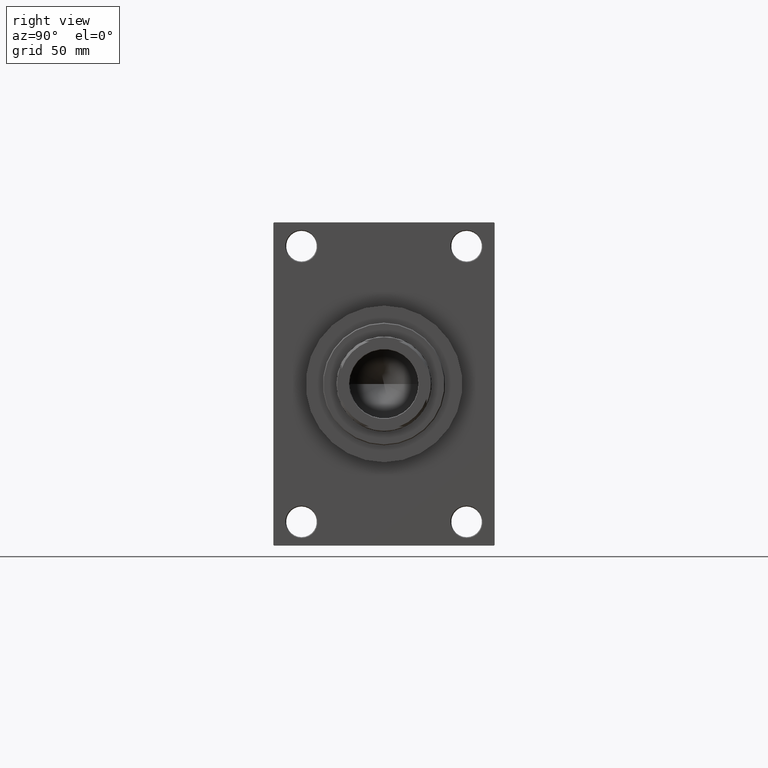
[diagram: clean part render]
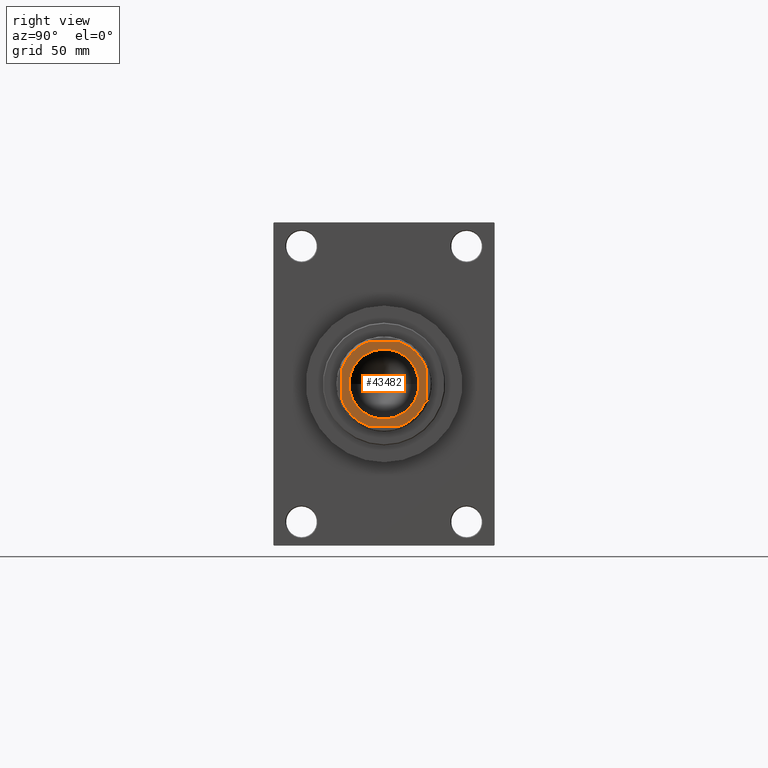
[diagram: same view with one face highlighted and labeled with its STEP entity id]
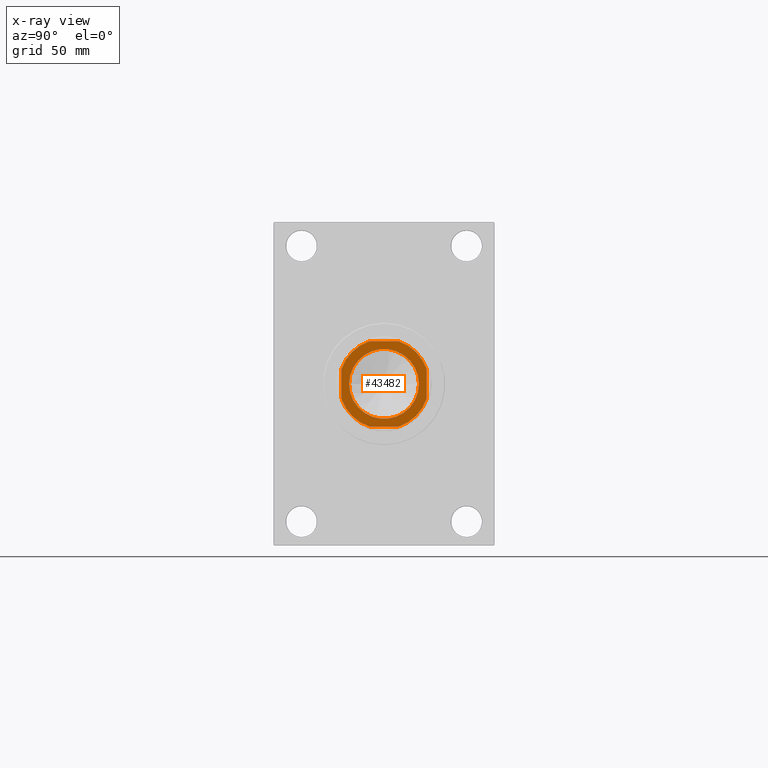
[diagram: x-ray of the same camera — body ghosted, the highlighted face saturated]
A machine part, right view. The second image highlights one B-rep face of the part: STEP entity #43482.
The next image is the same camera in x-ray: the body ghosted, the highlighted face saturated — about 0% of this face is hidden behind the body in this view.
In plain terms, the highlighted planar face has unit normal (1, 0, 0).
Its self-contained STEP definition (entity closure, byte-faithful):
#110 = CARTESIAN_POINT ( 'NONE',  ( -8.789197915623267576, -25.00000000000000000, 298.0000000000000568 ) ) ;
#726 = CARTESIAN_POINT ( 'NONE',  ( 8.789197915623374158, 25.00000000000000000, 298.0000000000000568 ) ) ;
#1507 = DIRECTION ( 'NONE',  ( 0.000000000000000000, -0.000000000000000000, -1.000000000000000000 ) ) ;
#1797 = VERTEX_POINT ( 'NONE', #8551 ) ;
#2225 = DIRECTION ( 'NONE',  ( 1.000000000000000000, 0.000000000000000000, 0.000000000000000000 ) ) ;
#2534 = VERTEX_POINT ( 'NONE', #2804 ) ;
#2804 = CARTESIAN_POINT ( 'NONE',  ( -20.55000000000001137, 2.516649172247812343E-15, 298.0000000000000568 ) ) ;
#2810 = EDGE_CURVE ( 'NONE', #3985, #24379, #23287, .T. ) ;
#2932 = ORIENTED_EDGE ( 'NONE', *, *, #7193, .T. ) ;
#2964 = FACE_BOUND ( 'NONE', #21729, .T. ) ;
#3301 = VECTOR ( 'NONE', #41203, 1000.000000000000000 ) ;
#3448 = DIRECTION ( 'NONE',  ( 1.000000000000000000, 0.000000000000000000, 0.000000000000000000 ) ) ;
#3607 = VECTOR ( 'NONE', #6169, 1000.000000000000000 ) ;
#3985 = VERTEX_POINT ( 'NONE', #110 ) ;
#4019 = CARTESIAN_POINT ( 'NONE',  ( -24.99999999999999645, 8.789197915623416790, 298.0000000000000568 ) ) ;
#4109 = DIRECTION ( 'NONE',  ( -0.000000000000000000, 0.000000000000000000, 1.000000000000000000 ) ) ;
#4447 = ORIENTED_EDGE ( 'NONE', *, *, #45637, .T. ) ;
#4713 = ORIENTED_EDGE ( 'NONE', *, *, #41660, .T. ) ;
#5529 = CARTESIAN_POINT ( 'NONE',  ( -8.789197915623409685, 25.00000000000000000, 298.0000000000000568 ) ) ;
#5556 = DIRECTION ( 'NONE',  ( 1.000000000000000000, 0.000000000000000000, 0.000000000000000000 ) ) ;
#6169 = DIRECTION ( 'NONE',  ( -1.387778780781445676E-16, 1.000000000000000000, -0.000000000000000000 ) ) ;
#6405 = VERTEX_POINT ( 'NONE', #42609 ) ;
#7193 = EDGE_CURVE ( 'NONE', #44391, #6405, #30117, .T. ) ;
#8176 = DIRECTION ( 'NONE',  ( 1.000000000000000000, 0.000000000000000000, 0.000000000000000000 ) ) ;
#8223 = CIRCLE ( 'NONE', #35194, 20.55000000000001137 ) ;
#8471 = DIRECTION ( 'NONE',  ( -1.000000000000000000, -0.000000000000000000, -0.000000000000000000 ) ) ;
#8551 = CARTESIAN_POINT ( 'NONE',  ( 25.00000000000000355, -8.789197915623359947, 298.0000000000000568 ) ) ;
#8747 = CARTESIAN_POINT ( 'NONE',  ( 0.000000000000000000, 0.000000000000000000, 298.0000000000000568 ) ) ;
#10033 = LINE ( 'NONE', #42855, #3607 ) ;
#12646 = DIRECTION ( 'NONE',  ( 1.000000000000000000, 0.000000000000000000, 0.000000000000000000 ) ) ;
#12860 = VECTOR ( 'NONE', #8471, 1000.000000000000000 ) ;
#13608 = AXIS2_PLACEMENT_3D ( 'NONE', #45542, #38754, #26734 ) ;
#13822 = CIRCLE ( 'NONE', #38469, 26.49999999999996803 ) ;
#14139 = DIRECTION ( 'NONE',  ( 1.000000000000000000, 0.000000000000000000, 0.000000000000000000 ) ) ;
#14310 = FACE_OUTER_BOUND ( 'NONE', #21854, .T. ) ;
#16134 = DIRECTION ( 'NONE',  ( -0.000000000000000000, 0.000000000000000000, 1.000000000000000000 ) ) ;
#17455 = DIRECTION ( 'NONE',  ( -0.000000000000000000, 0.000000000000000000, 1.000000000000000000 ) ) ;
#17942 = PLANE ( 'NONE',  #21318 ) ;
#19092 = CIRCLE ( 'NONE', #41405, 26.49999999999998224 ) ;
#20216 = CARTESIAN_POINT ( 'NONE',  ( 0.000000000000000000, 0.000000000000000000, 298.0000000000000568 ) ) ;
#20890 = ORIENTED_EDGE ( 'NONE', *, *, #29694, .T. ) ;
#20953 = ORIENTED_EDGE ( 'NONE', *, *, #36608, .T. ) ;
#21032 = ORIENTED_EDGE ( 'NONE', *, *, #2810, .T. ) ;
#21318 = AXIS2_PLACEMENT_3D ( 'NONE', #24460, #17455, #3448 ) ;
#21346 = VERTEX_POINT ( 'NONE', #5529 ) ;
#21389 = DIRECTION ( 'NONE',  ( 0.000000000000000000, -0.000000000000000000, -1.000000000000000000 ) ) ;
#21729 = EDGE_LOOP ( 'NONE', ( #28838, #20953 ) ) ;
#21854 = EDGE_LOOP ( 'NONE', ( #45626, #20890, #4713, #4447, #2932, #31482, #21032, #33949 ) ) ;
#22217 = CARTESIAN_POINT ( 'NONE',  ( 20.55000000000001137, 0.000000000000000000, 298.0000000000000568 ) ) ;
#22461 = EDGE_CURVE ( 'NONE', #1797, #32401, #10033, .T. ) ;
#22961 = VECTOR ( 'NONE', #12646, 1000.000000000000000 ) ;
#23250 = EDGE_CURVE ( 'NONE', #24379, #1797, #34422, .T. ) ;
#23287 = LINE ( 'NONE', #27377, #22961 ) ;
#24379 = VERTEX_POINT ( 'NONE', #30857 ) ;
#24460 = CARTESIAN_POINT ( 'NONE',  ( 0.000000000000000000, 0.000000000000000000, 298.0000000000000568 ) ) ;
#24766 = CARTESIAN_POINT ( 'NONE',  ( 0.000000000000000000, 0.000000000000000000, 298.0000000000000568 ) ) ;
#26292 = EDGE_CURVE ( 'NONE', #6405, #3985, #46876, .T. ) ;
#26734 = DIRECTION ( 'NONE',  ( 1.000000000000000000, 0.000000000000000000, 0.000000000000000000 ) ) ;
#27377 = CARTESIAN_POINT ( 'NONE',  ( -24.99999999999999289, -25.00000000000000000, 298.0000000000000568 ) ) ;
#28838 = ORIENTED_EDGE ( 'NONE', *, *, #44900, .T. ) ;
#29422 = CARTESIAN_POINT ( 'NONE',  ( -25.00000000000000000, 25.00000000000000000, 298.0000000000000568 ) ) ;
#29694 = EDGE_CURVE ( 'NONE', #32401, #39771, #13822, .T. ) ;
#29954 = DIRECTION ( 'NONE',  ( 1.000000000000000000, 0.000000000000000000, 0.000000000000000000 ) ) ;
#30117 = LINE ( 'NONE', #29422, #3301 ) ;
#30857 = CARTESIAN_POINT ( 'NONE',  ( 8.789197915623370605, -25.00000000000000000, 298.0000000000000568 ) ) ;
#31482 = ORIENTED_EDGE ( 'NONE', *, *, #26292, .T. ) ;
#32401 = VERTEX_POINT ( 'NONE', #46219 ) ;
#32812 = AXIS2_PLACEMENT_3D ( 'NONE', #24766, #21389, #14139 ) ;
#33949 = ORIENTED_EDGE ( 'NONE', *, *, #23250, .T. ) ;
#34422 = CIRCLE ( 'NONE', #13608, 26.49999999999996803 ) ;
#35194 = AXIS2_PLACEMENT_3D ( 'NONE', #8747, #1507, #2225 ) ;
#36608 = EDGE_CURVE ( 'NONE', #2534, #45572, #43583, .T. ) ;
#37180 = CARTESIAN_POINT ( 'NONE',  ( 0.000000000000000000, 0.000000000000000000, 298.0000000000000568 ) ) ;
#37669 = LINE ( 'NONE', #41536, #12860 ) ;
#38469 = AXIS2_PLACEMENT_3D ( 'NONE', #37180, #4109, #29954 ) ;
#38614 = DIRECTION ( 'NONE',  ( -0.000000000000000000, 0.000000000000000000, 1.000000000000000000 ) ) ;
#38754 = DIRECTION ( 'NONE',  ( -0.000000000000000000, 0.000000000000000000, 1.000000000000000000 ) ) ;
#39771 = VERTEX_POINT ( 'NONE', #726 ) ;
#41203 = DIRECTION ( 'NONE',  ( 1.387778780781445676E-16, -1.000000000000000000, 0.000000000000000000 ) ) ;
#41405 = AXIS2_PLACEMENT_3D ( 'NONE', #20216, #16134, #8176 ) ;
#41536 = CARTESIAN_POINT ( 'NONE',  ( -25.00000000000000000, 25.00000000000000000, 298.0000000000000568 ) ) ;
#41660 = EDGE_CURVE ( 'NONE', #39771, #21346, #37669, .T. ) ;
#42609 = CARTESIAN_POINT ( 'NONE',  ( -24.99999999999999645, -8.789197915623281787, 298.0000000000000568 ) ) ;
#42855 = CARTESIAN_POINT ( 'NONE',  ( 25.00000000000000000, 25.00000000000000000, 298.0000000000000568 ) ) ;
#43482 = ADVANCED_FACE ( 'NONE', ( #2964, #14310 ), #17942, .T. ) ;
#43583 = CIRCLE ( 'NONE', #32812, 20.55000000000001137 ) ;
#44391 = VERTEX_POINT ( 'NONE', #4019 ) ;
#44900 = EDGE_CURVE ( 'NONE', #45572, #2534, #8223, .T. ) ;
#45542 = CARTESIAN_POINT ( 'NONE',  ( 0.000000000000000000, 0.000000000000000000, 298.0000000000000568 ) ) ;
#45572 = VERTEX_POINT ( 'NONE', #22217 ) ;
#45626 = ORIENTED_EDGE ( 'NONE', *, *, #22461, .T. ) ;
#45637 = EDGE_CURVE ( 'NONE', #21346, #44391, #19092, .T. ) ;
#45872 = CARTESIAN_POINT ( 'NONE',  ( 0.000000000000000000, 0.000000000000000000, 298.0000000000000568 ) ) ;
#46102 = AXIS2_PLACEMENT_3D ( 'NONE', #45872, #38614, #5556 ) ;
#46219 = CARTESIAN_POINT ( 'NONE',  ( 25.00000000000000355, 8.789197915623368829, 298.0000000000000568 ) ) ;
#46876 = CIRCLE ( 'NONE', #46102, 26.49999999999993250 ) ;